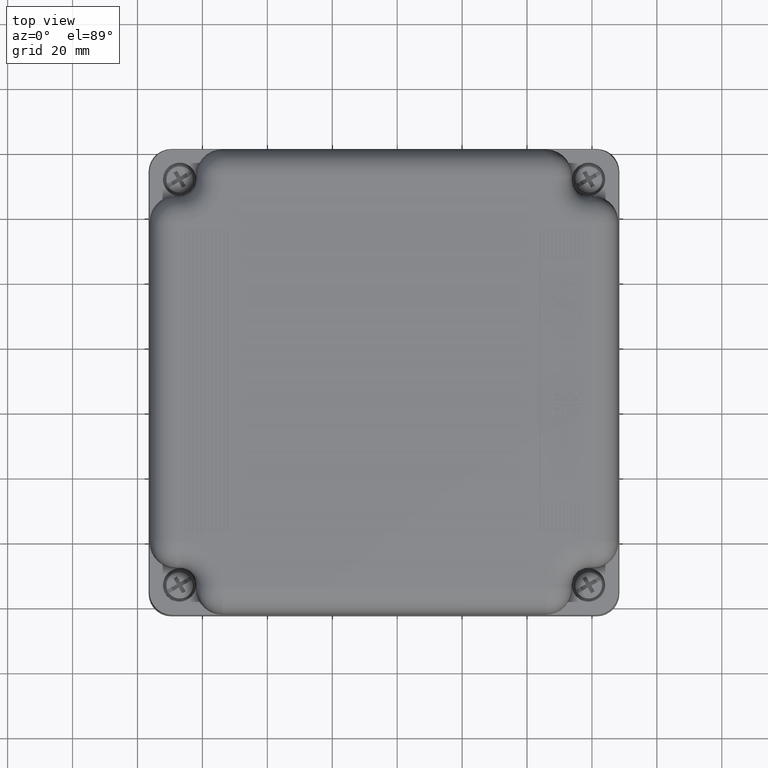
[diagram: clean part render]
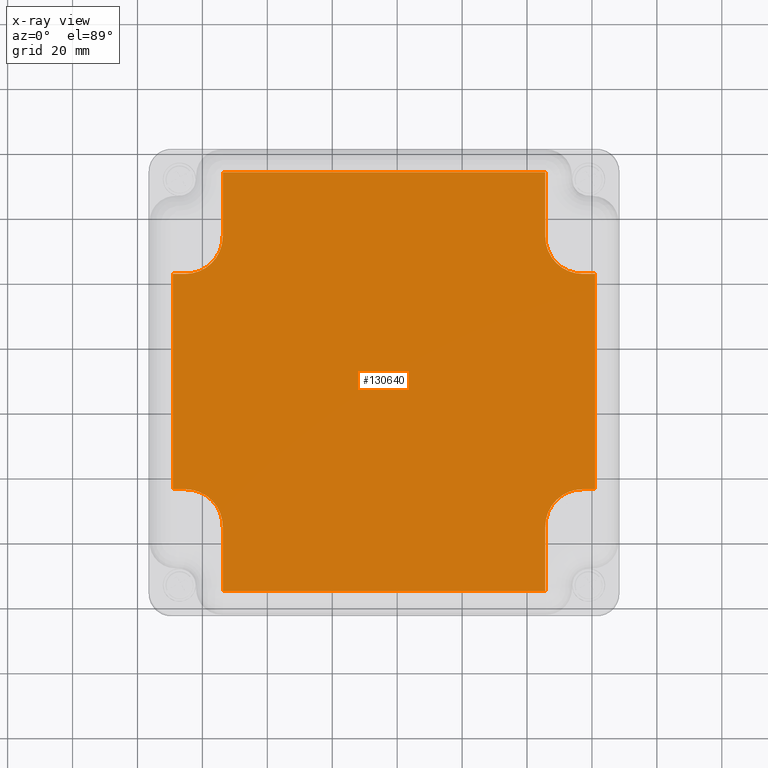
[diagram: x-ray — body ghosted, one internal face saturated and labeled with its STEP entity id]
A machine part, top view, then the same camera in x-ray: the body is ghosted and one INTERNAL B-rep face — a face not visible from any outside direction — is saturated and labeled: STEP entity #130640.
In plain terms, the highlighted planar face has unit normal (0, -0, -1).
Its self-contained STEP definition (entity closure, byte-faithful):
#2400=CARTESIAN_POINT('',(453.689374529405,78.3119010508173,
-0.499999999976271));
#2410=VERTEX_POINT('',#2400);
#2590=CARTESIAN_POINT('',(465.185433766624,89.8079602880369,
-0.499999999974311));
#2600=VERTEX_POINT('',#2590);
#2630=CARTESIAN_POINT('',(465.19331664305,78.3040181743919,
-0.499999999974309));
#2640=DIRECTION('',(1.70530256582424E-13,0.,-1.));
#2650=DIRECTION('',(-0.707106781186646,0.707106781186449,
-1.20583100826931E-13));
#2660=AXIS2_PLACEMENT_3D('',#2630,#2640,#2650);
#2670=ELLIPSE('',#2660,11.5078828768887,11.5);
#2680=EDGE_CURVE('',#2410,#2600,#2670,.T.);
#8170=CARTESIAN_POINT('',(354.310625470564,167.685433766658,
-0.499999999993218));
#8180=VERTEX_POINT('',#8170);
#8340=CARTESIAN_POINT('',(342.814566233344,156.189374529439,
-0.499999999995179));
#8350=VERTEX_POINT('',#8340);
#8380=CARTESIAN_POINT('',(342.806683356919,167.693316643084,
-0.49999999999518));
#8390=DIRECTION('',(1.70530256582424E-13,0.,-1.));
#8400=DIRECTION('',(-0.707106781186493,0.707106781186603,
-1.20583100826905E-13));
#8410=AXIS2_PLACEMENT_3D('',#8380,#8390,#8400);
#8420=ELLIPSE('',#8410,11.5078828768887,11.5);
#8430=EDGE_CURVE('',#8180,#8350,#8420,.T.);
#26830=CARTESIAN_POINT('',(354.31062547058,0.,-0.499999999993218));
#26840=DIRECTION('',(-5.68434188623836E-14,1.,-9.69368914489958E-27));
#26850=VECTOR('',#26840,1.);
#26860=LINE('',#26830,#26850);
#26870=CARTESIAN_POINT('',(354.310625470576,58.5092928793444,
-0.499999999993218));
#26880=VERTEX_POINT('',#26870);
#26890=CARTESIAN_POINT('',(354.310625470575,78.3119010508132,
-0.499999999993218));
#26900=VERTEX_POINT('',#26890);
#26910=EDGE_CURVE('',#26880,#26900,#26860,.T.);
#29020=CARTESIAN_POINT('',(0.,89.8079602880094,-0.500000000053639));
#29030=DIRECTION('',(-1.,-5.91095905161927E-14,-1.70530256582424E-13));
#29040=VECTOR('',#29030,1.);
#29050=LINE('',#29020,#29040);
#29060=CARTESIAN_POINT('',(468.989374529399,89.8079602880371,
-0.499999999973662));
#29070=VERTEX_POINT('',#29060);
#29080=EDGE_CURVE('',#29070,#2600,#29050,.T.);
#62710=CARTESIAN_POINT('',(342.814566233356,89.8079602880314,
-0.499999999995179));
#62720=VERTEX_POINT('',#62710);
#62830=CARTESIAN_POINT('',(342.80668335693,78.3040181743864,
-0.49999999999518));
#62840=DIRECTION('',(1.70530256582424E-13,0.,-1.));
#62850=DIRECTION('',(0.707106781186509,0.707106781186586,
1.20583100826907E-13));
#62860=AXIS2_PLACEMENT_3D('',#62830,#62840,#62850);
#62870=ELLIPSE('',#62860,11.5078828768887,11.5);
#62880=EDGE_CURVE('',#62720,#26900,#62870,.T.);
#63360=CARTESIAN_POINT('',(0.,187.48804193814,-0.500000000053639));
#63370=DIRECTION('',(1.,-1.09811158614776E-14,1.70530256582424E-13));
#63380=VECTOR('',#63370,1.);
#63390=LINE('',#63360,#63380);
#63400=CARTESIAN_POINT('',(354.310625470563,187.488041938136,
-0.499999999993218));
#63410=VERTEX_POINT('',#63400);
#63420=CARTESIAN_POINT('',(453.689374529393,187.488041938135,
-0.499999999976271));
#63430=VERTEX_POINT('',#63420);
#63440=EDGE_CURVE('',#63410,#63430,#63390,.T.);
#67440=CARTESIAN_POINT('',(339.010625470589,156.189374529439,
-0.499999999995827));
#67450=VERTEX_POINT('',#67440);
#67600=CARTESIAN_POINT('',(339.010625470585,89.8079602880312,
-0.499999999995827));
#67610=VERTEX_POINT('',#67600);
#67640=CARTESIAN_POINT('',(339.010625470579,0.,-0.499999999995827));
#67650=DIRECTION('',(5.92753020140504E-14,1.,1.0107193957007E-26));
#67660=VECTOR('',#67650,1.);
#67670=LINE('',#67640,#67660);
#67680=EDGE_CURVE('',#67610,#67450,#67670,.T.);
#116910=CARTESIAN_POINT('',(0.,156.189374529461,-0.500000000053639));
#116920=DIRECTION('',(1.,-6.52209427175391E-14,1.70530256582424E-13));
#116930=VECTOR('',#116920,1.);
#116940=LINE('',#116910,#116930);
#116950=EDGE_CURVE('',#67450,#8350,#116940,.T.);
#120360=CARTESIAN_POINT('',(354.310625470574,0.,-0.499999999993218));
#120370=DIRECTION('',(-5.68434188623836E-14,1.,-9.69368914489958E-27));
#120380=VECTOR('',#120370,1.);
#120390=LINE('',#120360,#120380);
#120400=EDGE_CURVE('',#8180,#63410,#120390,.T.);
#128080=CARTESIAN_POINT('',(0.,89.8079602880112,-0.500000000053639));
#128090=DIRECTION('',(-1.,-5.91095905161927E-14,-1.70530256582424E-13));
#128100=VECTOR('',#128090,1.);
#128110=LINE('',#128080,#128100);
#128120=EDGE_CURVE('',#62720,#67610,#128110,.T.);
#128860=CARTESIAN_POINT('',(0.,58.5092928793648,-0.500000000053639));
#128870=DIRECTION('',(-1.,5.76453741243826E-14,-1.70530256582424E-13));
#128880=VECTOR('',#128870,1.);
#128890=LINE('',#128860,#128880);
#128900=CARTESIAN_POINT('',(453.689374529407,58.5092928793387,
-0.499999999976271));
#128910=VERTEX_POINT('',#128900);
#128920=EDGE_CURVE('',#128910,#26880,#128890,.T.);
#130090=CARTESIAN_POINT('',(355.750780367935,229.925521273195,
-0.499999999992973));
#130100=DIRECTION('',(1.70530256582424E-13,0.,-1.));
#130110=DIRECTION('',(-1.,0.,-1.70530256582424E-13));
#130120=AXIS2_PLACEMENT_3D('',#130090,#130100,#130110);
#130130=PLANE('',#130120);
#130140=CARTESIAN_POINT('',(465.193316643039,167.693316643078,
-0.499999999974309));
#130150=DIRECTION('',(1.70530256582424E-13,0.,-1.));
#130160=DIRECTION('',(-0.70710678118663,-0.707106781186465,
-1.20583100826928E-13));
#130170=AXIS2_PLACEMENT_3D('',#130140,#130150,#130160);
#130180=ELLIPSE('',#130170,11.5078828768887,11.5);
#130190=CARTESIAN_POINT('',(465.185433766612,156.189374529433,
-0.499999999974311));
#130200=VERTEX_POINT('',#130190);
#130210=CARTESIAN_POINT('',(453.689374529394,167.685433766651,
-0.499999999976271));
#130220=VERTEX_POINT('',#130210);
#130230=EDGE_CURVE('',#130200,#130220,#130180,.T.);
#130240=ORIENTED_EDGE('',*,*,#130230,.F.);
#130250=CARTESIAN_POINT('',(453.689374529404,0.,-0.499999999976271));
#130260=DIRECTION('',(5.83821300996126E-14,-1.,9.95568074341038E-27));
#130270=VECTOR('',#130260,1.);
#130280=LINE('',#130250,#130270);
#130290=EDGE_CURVE('',#63430,#130220,#130280,.T.);
#130300=ORIENTED_EDGE('',*,*,#130290,.T.);
#130310=ORIENTED_EDGE('',*,*,#63440,.T.);
#130320=ORIENTED_EDGE('',*,*,#120400,.T.);
#130330=ORIENTED_EDGE('',*,*,#8430,.F.);
#130340=ORIENTED_EDGE('',*,*,#116950,.T.);
#130350=ORIENTED_EDGE('',*,*,#67680,.T.);
#130360=ORIENTED_EDGE('',*,*,#128120,.T.);
#130370=ORIENTED_EDGE('',*,*,#62880,.F.);
#130380=ORIENTED_EDGE('',*,*,#26910,.T.);
#130390=ORIENTED_EDGE('',*,*,#128920,.T.);
#130400=CARTESIAN_POINT('',(453.68937452941,0.,-0.499999999976271));
#130410=DIRECTION('',(5.83821300996126E-14,-1.,9.95568074341038E-27));
#130420=VECTOR('',#130410,1.);
#130430=LINE('',#130400,#130420);
#130440=EDGE_CURVE('',#2410,#128910,#130430,.T.);
#130450=ORIENTED_EDGE('',*,*,#130440,.T.);
#130460=ORIENTED_EDGE('',*,*,#2680,.F.);
#130470=ORIENTED_EDGE('',*,*,#29080,.T.);
#130480=CARTESIAN_POINT('',(468.989374529404,0.,-0.499999999973662));
#130490=DIRECTION('',(5.9275302014094E-14,-1.,1.0107193957007E-26));
#130500=VECTOR('',#130490,1.);
#130510=LINE('',#130480,#130500);
#130520=CARTESIAN_POINT('',(468.989374529395,156.189374529432,
-0.499999999973662));
#130530=VERTEX_POINT('',#130520);
#130540=EDGE_CURVE('',#130530,#29070,#130510,.T.);
#130550=ORIENTED_EDGE('',*,*,#130540,.T.);
#130560=CARTESIAN_POINT('',(0.,156.189374529463,-0.500000000053639));
#130570=DIRECTION('',(1.,-6.52209427175391E-14,1.70530256582424E-13));
#130580=VECTOR('',#130570,1.);
#130590=LINE('',#130560,#130580);
#130600=EDGE_CURVE('',#130200,#130530,#130590,.T.);
#130610=ORIENTED_EDGE('',*,*,#130600,.T.);
#130620=EDGE_LOOP('',(#130610,#130550,#130470,#130460,#130450,#130390,
#130380,#130370,#130360,#130350,#130340,#130330,#130320,#130310,#130300,
#130240));
#130630=FACE_OUTER_BOUND('',#130620,.T.);
#130640=ADVANCED_FACE('',(#130630),#130130,.T.);